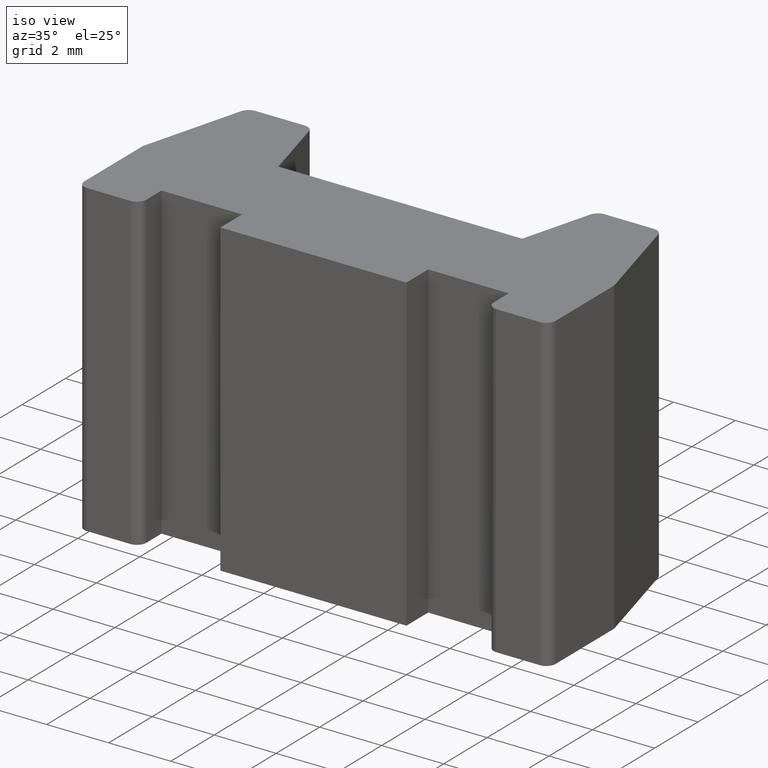
[diagram: clean part render]
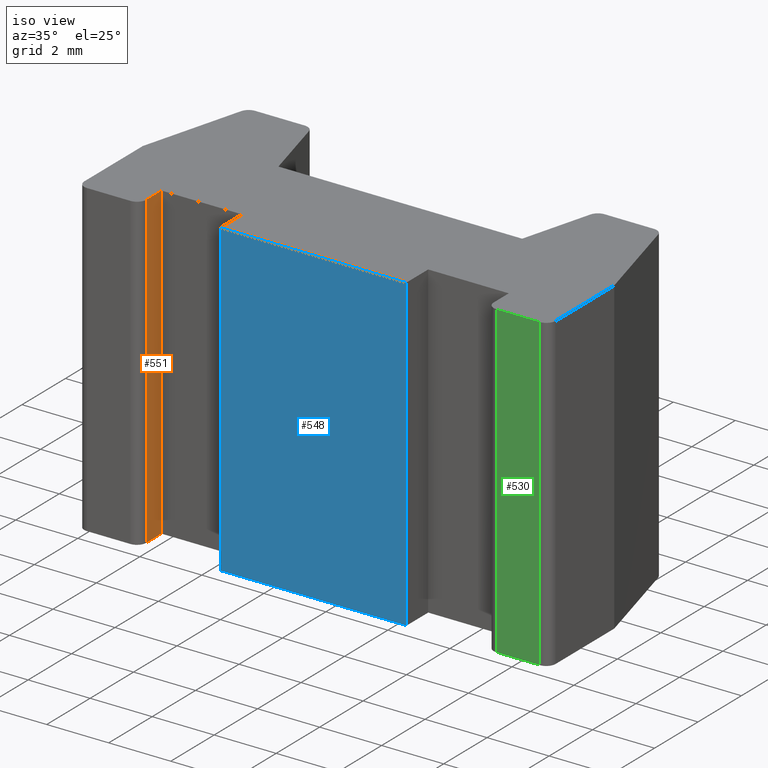
[diagram: same view with three faces highlighted in distinct colors, each labeled with its STEP entity id]
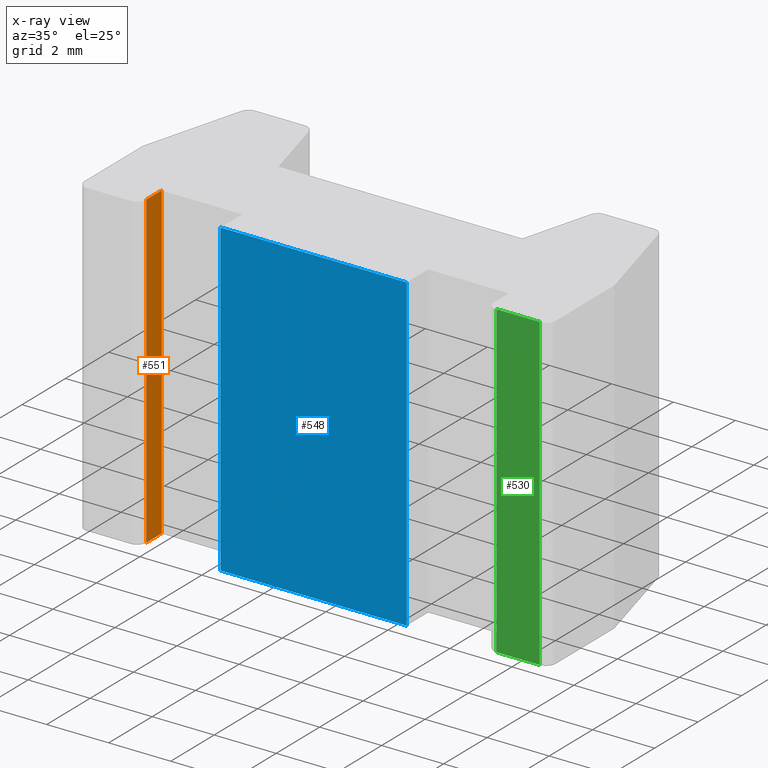
[diagram: x-ray of the same camera — body ghosted, the three highlighted faces saturated]
A machine part, iso view with three faces highlighted in distinct colors.
The next image is the same camera in x-ray (body ghosted, the three faces saturated) — at least one of them is partly hidden behind the body in this view.
Their STEP definitions:

[orange] entity #551 — the highlighted planar face has unit normal (1, 0, 0).
#33=PLANE('',#618);
#61=FACE_OUTER_BOUND('',#89,.T.);
#89=EDGE_LOOP('',(#487,#488,#489,#490));
#92=LINE('',#781,#154);
#110=LINE('',#831,#172);
#151=LINE('',#927,#213);
#152=LINE('',#929,#214);
#154=VECTOR('',#629,10.);
#172=VECTOR('',#663,10.);
#213=VECTOR('',#766,10.);
#214=VECTOR('',#769,10.);
#231=VERTEX_POINT('',#774);
#234=VERTEX_POINT('',#779);
#258=VERTEX_POINT('',#829);
#282=VERTEX_POINT('',#925);
#286=EDGE_CURVE('',#234,#231,#92,.T.);
#311=EDGE_CURVE('',#234,#258,#110,.T.);
#359=EDGE_CURVE('',#258,#282,#151,.T.);
#360=EDGE_CURVE('',#282,#231,#152,.T.);
#487=ORIENTED_EDGE('',*,*,#286,.F.);
#488=ORIENTED_EDGE('',*,*,#311,.T.);
#489=ORIENTED_EDGE('',*,*,#359,.T.);
#490=ORIENTED_EDGE('',*,*,#360,.T.);
#551=ADVANCED_FACE('',(#61),#33,.T.);
#618=AXIS2_PLACEMENT_3D('',#928,#767,#768);
#629=DIRECTION('',(0.,0.,1.));
#663=DIRECTION('',(-2.77555756156289E-16,1.,0.));
#766=DIRECTION('',(0.,0.,1.));
#767=DIRECTION('center_axis',(1.,2.77555756156289E-16,0.));
#768=DIRECTION('ref_axis',(0.,0.,-1.));
#769=DIRECTION('',(2.77555756156289E-16,-1.,0.));
#774=CARTESIAN_POINT('',(2.,0.3,10.));
#779=CARTESIAN_POINT('',(2.,0.3,0.));
#781=CARTESIAN_POINT('',(2.,0.3,0.));
#829=CARTESIAN_POINT('',(2.,1.,0.));
#831=CARTESIAN_POINT('',(2.,0.,0.));
#925=CARTESIAN_POINT('',(2.,1.,10.));
#927=CARTESIAN_POINT('',(2.,1.,0.));
#928=CARTESIAN_POINT('Origin',(2.,1.,0.));
#929=CARTESIAN_POINT('',(2.,0.,10.));

[blue] entity #548 — the highlighted planar face has unit normal (0, -1, 0).
#30=PLANE('',#615);
#58=FACE_OUTER_BOUND('',#86,.T.);
#86=EDGE_LOOP('',(#475,#476,#477,#478));
#107=LINE('',#826,#169);
#145=LINE('',#915,#207);
#146=LINE('',#918,#208);
#147=LINE('',#919,#209);
#169=VECTOR('',#660,10.);
#207=VECTOR('',#754,10.);
#208=VECTOR('',#757,10.);
#209=VECTOR('',#758,10.);
#255=VERTEX_POINT('',#823);
#256=VERTEX_POINT('',#825);
#279=VERTEX_POINT('',#913);
#280=VERTEX_POINT('',#917);
#308=EDGE_CURVE('',#256,#255,#107,.T.);
#353=EDGE_CURVE('',#255,#279,#145,.T.);
#354=EDGE_CURVE('',#279,#280,#146,.T.);
#355=EDGE_CURVE('',#256,#280,#147,.T.);
#475=ORIENTED_EDGE('',*,*,#354,.T.);
#476=ORIENTED_EDGE('',*,*,#355,.F.);
#477=ORIENTED_EDGE('',*,*,#308,.T.);
#478=ORIENTED_EDGE('',*,*,#353,.T.);
#548=ADVANCED_FACE('',(#58),#30,.T.);
#615=AXIS2_PLACEMENT_3D('',#916,#755,#756);
#660=DIRECTION('',(1.,0.,0.));
#754=DIRECTION('',(0.,0.,1.));
#755=DIRECTION('center_axis',(0.,-1.,0.));
#756=DIRECTION('ref_axis',(0.,0.,-1.));
#757=DIRECTION('',(-1.,0.,0.));
#758=DIRECTION('',(0.,0.,1.));
#823=CARTESIAN_POINT('',(10.6,0.,0.));
#825=CARTESIAN_POINT('',(4.6,0.,0.));
#826=CARTESIAN_POINT('',(4.6,0.,0.));
#913=CARTESIAN_POINT('',(10.6,0.,10.));
#915=CARTESIAN_POINT('',(10.6,0.,0.));
#916=CARTESIAN_POINT('Origin',(10.6,0.,0.));
#917=CARTESIAN_POINT('',(4.6,0.,10.));
#918=CARTESIAN_POINT('',(4.6,0.,10.));
#919=CARTESIAN_POINT('',(4.6,0.,0.));

[green] entity #530 — the highlighted planar face has unit normal (0, -1, 0).
#17=PLANE('',#592);
#40=FACE_OUTER_BOUND('',#68,.T.);
#68=EDGE_LOOP('',(#403,#404,#405,#406));
#103=LINE('',#816,#165);
#114=LINE('',#844,#176);
#116=LINE('',#848,#178);
#117=LINE('',#849,#179);
#165=VECTOR('',#654,10.);
#176=VECTOR('',#677,10.);
#178=VECTOR('',#681,10.);
#179=VECTOR('',#682,10.);
#250=VERTEX_POINT('',#813);
#251=VERTEX_POINT('',#815);
#262=VERTEX_POINT('',#842);
#263=VERTEX_POINT('',#847);
#303=EDGE_CURVE('',#251,#250,#103,.T.);
#317=EDGE_CURVE('',#262,#250,#114,.T.);
#319=EDGE_CURVE('',#262,#263,#116,.T.);
#320=EDGE_CURVE('',#251,#263,#117,.T.);
#403=ORIENTED_EDGE('',*,*,#317,.F.);
#404=ORIENTED_EDGE('',*,*,#319,.T.);
#405=ORIENTED_EDGE('',*,*,#320,.F.);
#406=ORIENTED_EDGE('',*,*,#303,.T.);
#530=ADVANCED_FACE('',(#40),#17,.T.);
#592=AXIS2_PLACEMENT_3D('',#846,#679,#680);
#654=DIRECTION('',(1.,0.,0.));
#677=DIRECTION('',(0.,0.,-1.));
#679=DIRECTION('center_axis',(0.,-1.,0.));
#680=DIRECTION('ref_axis',(0.,0.,-1.));
#681=DIRECTION('',(-1.,0.,0.));
#682=DIRECTION('',(0.,0.,1.));
#813=CARTESIAN_POINT('',(14.9,0.,0.));
#815=CARTESIAN_POINT('',(13.5,0.,0.));
#816=CARTESIAN_POINT('',(13.2,0.,0.));
#842=CARTESIAN_POINT('',(14.9,0.,10.));
#844=CARTESIAN_POINT('',(14.9,0.,0.));
#846=CARTESIAN_POINT('Origin',(15.2,0.,0.));
#847=CARTESIAN_POINT('',(13.5,0.,10.));
#848=CARTESIAN_POINT('',(13.2,0.,10.));
#849=CARTESIAN_POINT('',(13.5,0.,0.));